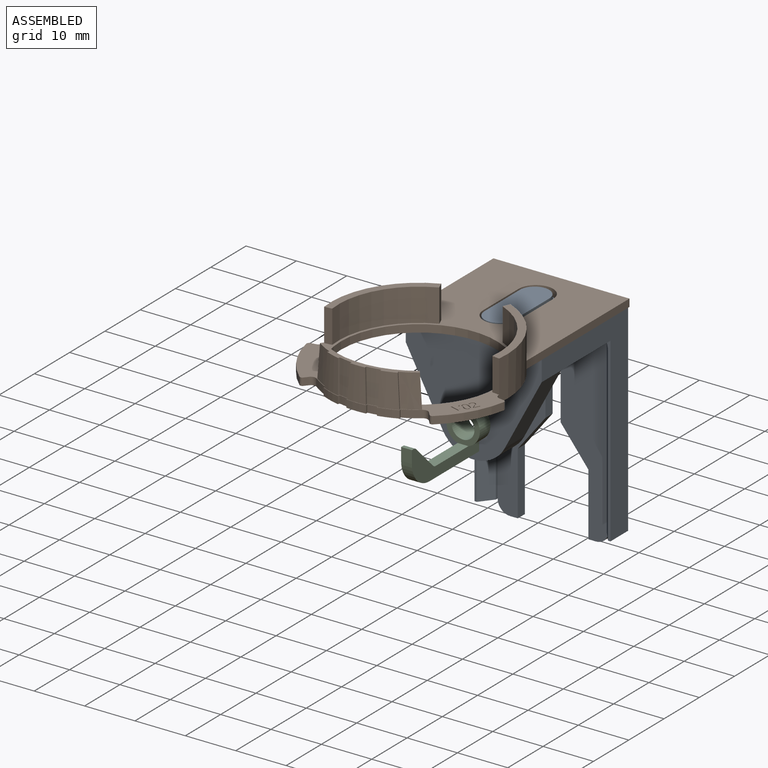
[diagram: assembled view]
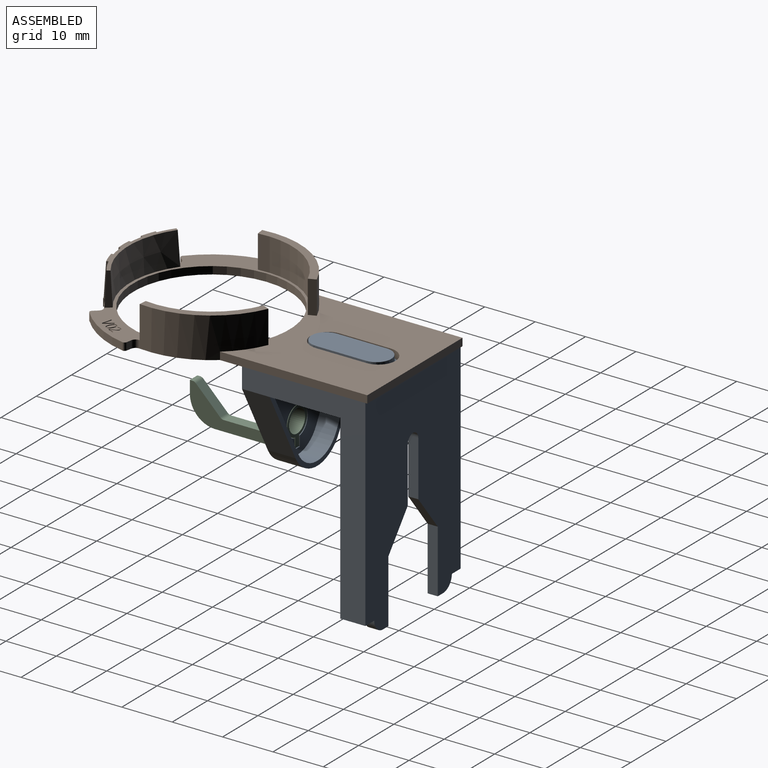
[diagram: assembled view, second angle]
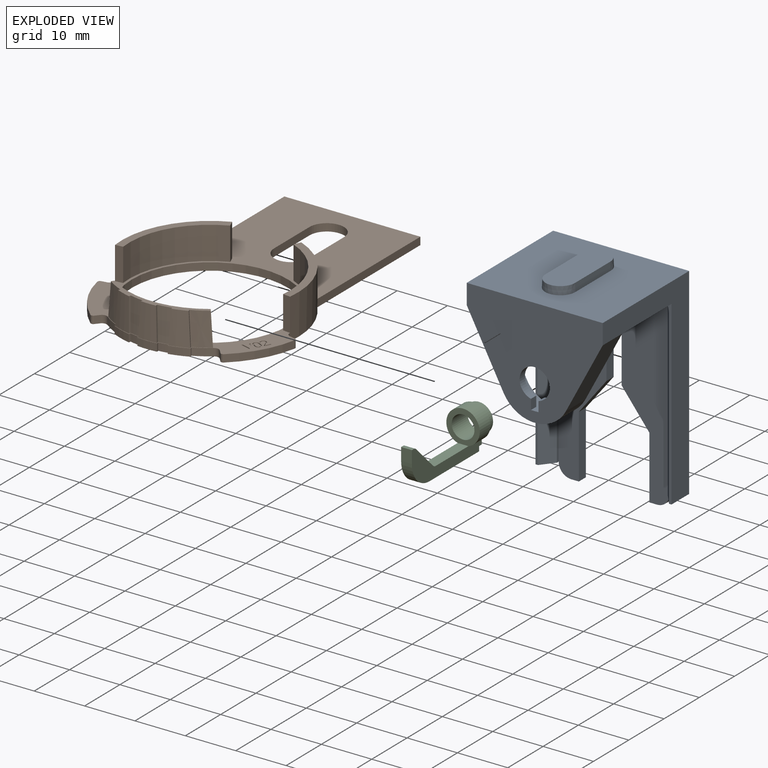
[diagram: exploded view]
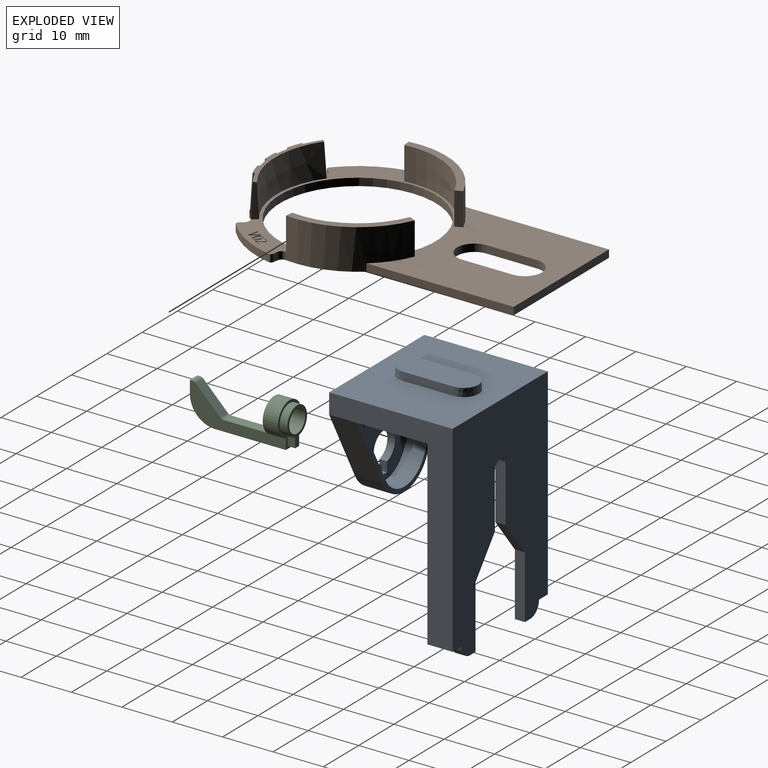
[diagram: exploded view, second angle]
ASSEMBLY  parts=3 mates=3
PART A: 112 faces, bbox 27x44.1x24.5 mm
  f0: plane 14x0.97mm, normal (0,1,0), area 13.6mm2, adj f4,f31,f35,f111
  f1: plane 14x0.97mm, normal (0,1,0), area 13.6mm2, adj f3,f19,f33,f111
  f2: plane 25.06x19.1mm, normal (0,0,-1), area 289.4mm2, adj f33,f34,f35,f36,f37,f38,f42,f106
  f3: plane 40x24.5mm, normal (1,0,0), area 274.1mm2, adj f1,f5,f6,f19,f32,f40,f43,f49
  f4: plane 36x0.97mm, normal (0,0,1), area 18.3mm2, adj f0,f20,f29,f30,f31
  f5: plane 5x2.5mm, normal (0,1,0), area 10mm2, adj f3,f6,f18,f19,f25,f26
  f6: plane 42.5x27mm, normal (0,0,-1), area 861.3mm2, adj f3,f5,f8,f9,f10,f11,f12,f13
  f7: plane 39x22mm, normal (0,0,1), area 581.6mm2, adj f8,f9,f10,f11,f12,f13,f14,f15
  f8: cylinder r=2.5mm len=2.5mm, axis (0,0,-1), area 7.9mm2, adj f6,f7,f9,f20
  f9: plane 2x1.5mm, normal (0,1,0), area 3mm2, adj f6,f7,f8,f10
  f10: plane 12.5x2mm, normal (1,0,0), area 25mm2, adj f6,f7,f9,f11
  f11: plane 7x5.5mm, normal (0.79,0.62,0), area 17.8mm2, adj f6,f7,f10,f12
  f12: plane 11x2mm, normal (1,0,0), area 22mm2, adj f6,f7,f11,f13
  f13: cylinder r=1.5mm len=3mm, axis (0,0,-1), area 9.4mm2, adj f6,f7,f12,f14
  f14: plane 11x2mm, normal (-1,0,0), area 22mm2, adj f6,f7,f13,f15
  f15: plane 7x5.5mm, normal (-0.79,0.62,0), area 17.8mm2, adj f6,f7,f14,f16
  f16: plane 12.5x2mm, normal (-1,0,0), area 25mm2, adj f6,f7,f15,f17
  f17: plane 2x1.5mm, normal (0,1,0), area 3mm2, adj f6,f7,f16,f18
  f18: cylinder r=2.5mm len=2.5mm, axis (0,0,-1), area 7.9mm2, adj f5,f6,f7,f17
  f19: plane 36x0.97mm, normal (0,0,1), area 18.3mm2, adj f1,f3,f5,f26,f27
  f20: plane 5x2.5mm, normal (0,1,0), area 10mm2, adj f4,f6,f8,f21,f30,f31
  f21: plane 34x0.5mm, normal (1,0,0), area 17mm2, adj f7,f20,f22,f30
  f22: cylinder r=2.5mm len=2.5mm, axis (0,0,1), area 2mm2, adj f7,f21,f23,f29
  f23: plane 17x0.5mm, normal (0,1,0), area 8.5mm2, adj f7,f22,f24,f28
  f24: cylinder r=2.5mm len=2.5mm, axis (0,0,1), area 2mm2, adj f7,f23,f25,f27
  f25: plane 34x0.5mm, normal (-1,0,0), area 17mm2, adj f5,f7,f24,f26
  f26: plane 34x2.5mm, normal (-0.78,0,0.62), area 108.9mm2, adj f5,f19,f25,f27
  f27: cone r=2.5mm half-angle=38.7deg, axis (0,0,1), area 17.6mm2, adj f19,f24,f26,f28,f33
  f28: plane 17x2.5mm, normal (0,0.78,0.62), area 54.4mm2, adj f23,f27,f29,f34
  f29: cone r=2.5mm half-angle=38.7deg, axis (0,0,1), area 17.6mm2, adj f4,f22,f28,f30,f35
  f30: plane 34x2.5mm, normal (0.78,0,0.62), area 108.9mm2, adj f4,f20,f21,f29
  f31: plane 40x24.5mm, normal (-1,0,0), area 278mm2, adj f0,f4,f6,f20,f32,f39,f43
  f32: plane 27x24.5mm, normal (0,-1,0), area 573.2mm2, adj f3,f6,f31,f43,f44,f45,f46,f47
  f33: cylinder r=4.5mm len=18mm, axis (0,0,-1), area 89.9mm2, adj f1,f2,f27,f34,f106
  f34: plane 18x17mm, normal (0,1,0), area 306mm2, adj f2,f28,f33,f35
  f35: cylinder r=4.5mm len=18mm, axis (0,0,-1), area 89.9mm2, adj f0,f2,f29,f34,f110
  f36: plane 2x1.5mm, normal (-1,0,0), area 3mm2, adj f2,f37,f42,f43
  f37: cylinder r=3mm len=6mm, axis (0,0,-1), area 26mm2, adj f2,f36,f38,f43
  f38: plane 2x1.5mm, normal (1,0,0), area 3mm2, adj f2,f37,f42,f43
  f39: plane 13.78x7.32mm, normal (-0.88,0.47,0), area 85.8mm2, adj f31,f41,f43,f111
  f40: plane 13.78x7.32mm, normal (0.88,0.47,0), area 85.8mm2, adj f3,f41,f43,f111
  f41: cylinder r=7mm len=12.37mm, axis (0,0,-1), area 83.4mm2, adj f39,f40,f43,f111
  f42: plane 1.5x1.5mm, normal (0,-1,0), area 2.2mm2, adj f2,f36,f38,f43
  f43: plane 27x21.5mm, normal (0,0,1), area 380.9mm2, adj f3,f31,f32,f36,f37,f38,f39,f40
  f44: cone r=3mm half-angle=3deg, axis (0,1,0), area 14.9mm2, adj f32,f45,f47,f48
  f45: plane 10x1.6mm, normal (1,-0.05,0), area 16mm2, adj f32,f44,f46,f48
  f46: cone r=3mm half-angle=3deg, axis (0,1,0), area 14.9mm2, adj f32,f45,f47,f48
  f47: plane 10x1.6mm, normal (-1,-0.05,0), area 16mm2, adj f32,f44,f46,f48
  f48: plane 15.83x5.83mm, normal (0,-1,0), area 85mm2, adj f44,f45,f46,f47
  f49: extruded ~0.33x0.2mm, area 0.1mm2, adj f3,f50,f70,f77
  f50: extruded ~0.28x0.2mm, area 0.1mm2, adj f3,f49,f71,f77
  f51: extruded ~0.26x0.2mm, area 0.1mm2, adj f3,f52,f71,f77
  f52: extruded ~0.24x0.2mm, area 0mm2, adj f3,f51,f53,f77
  f53: extruded ~0.27x0.2mm, area 0.1mm2, adj f3,f52,f54,f77
  f54: extruded ~0.22x0.2mm, area 0.1mm2, adj f3,f53,f55,f77
  f55: extruded ~0.28x0.2mm, area 0.1mm2, adj f3,f54,f56,f77
  f56: extruded ~0.36x0.2mm, area 0.1mm2, adj f3,f55,f72,f77
  f57: extruded ~0.56x0.35mm, area 0.1mm2, adj f3,f58,f74,f77
  f58: extruded ~0.5x0.39mm, area 0.1mm2, adj f3,f57,f59,f77
  f59: extruded ~0.27x0.2mm, area 0.1mm2, adj f3,f58,f60,f77
  f60: extruded ~0.27x0.2mm, area 0.1mm2, adj f3,f59,f75,f77
  f61: extruded ~0.25x0.2mm, area 0.1mm2, adj f3,f62,f75,f77
  f62: extruded ~0.28x0.2mm, area 0.1mm2, adj f3,f61,f63,f77
  f63: extruded ~0.55x0.2mm, area 0.1mm2, adj f3,f62,f64,f77
  f64: extruded ~0.43x0.2mm, area 0.1mm2, adj f3,f63,f65,f77
  f65: extruded ~0.31x0.2mm, area 0.1mm2, adj f3,f64,f66,f77
  f66: extruded ~0.35x0.2mm, area 0.1mm2, adj f3,f65,f76,f77
  f67: extruded ~0.3x0.2mm, area 0.1mm2, adj f3,f68,f76,f77
  f68: extruded ~0.3x0.2mm, area 0.1mm2, adj f3,f67,f69,f77
  f69: extruded ~0.36x0.2mm, area 0.1mm2, adj f3,f68,f70,f77
  f70: extruded ~0.44x0.2mm, area 0.1mm2, adj f3,f49,f69,f77
  f71: plane 0.2x0.15mm, normal (0,0.6,-0.8), area 0mm2, adj f3,f50,f51,f77
  f72: plane 0.2x0.19mm, normal (0,-1,0), area 0mm2, adj f3,f56,f73,f77
  f73: plane 0.2x0.19mm, normal (0,0,-1), area 0mm2, adj f3,f72,f74,f77
  f74: plane 0.2x0.19mm, normal (0,1,0), area 0mm2, adj f3,f57,f73,f77
  f75: plane 0.21x0.2mm, normal (0,0,-1), area 0mm2, adj f3,f60,f61,f77
  f76: plane 0.2x0.01mm, normal (0,0,1), area 0mm2, adj f3,f66,f67,f77
  f77: plane 2x1.27mm, normal (1,0,0), area 0.9mm2, adj f49,f50,f51,f52,f53,f54,f55,f56
  f78: extruded ~0.48x0.25mm, area 0.1mm2, adj f3,f79,f93,f94
  f79: extruded ~0.75x0.2mm, area 0.2mm2, adj f3,f78,f80,f94
  f80: extruded ~0.75x0.2mm, area 0.2mm2, adj f3,f79,f81,f94
  f81: extruded ~0.48x0.25mm, area 0.1mm2, adj f3,f80,f82,f94
  f82: extruded ~0.49x0.25mm, area 0.1mm2, adj f3,f81,f83,f94
  f83: extruded ~0.75x0.2mm, area 0.2mm2, adj f3,f82,f84,f94
  f84: extruded ~0.74x0.2mm, area 0.2mm2, adj f3,f83,f93,f94
  f85: extruded ~0.32x0.2mm, area 0.1mm2, adj f86,f92,f94,f95
  f86: extruded ~0.61x0.2mm, area 0.1mm2, adj f85,f87,f94,f95
  f87: extruded ~0.61x0.2mm, area 0.1mm2, adj f86,f88,f94,f95
  f88: extruded ~0.32x0.2mm, area 0.1mm2, adj f87,f89,f94,f95
  f89: extruded ~0.32x0.2mm, area 0.1mm2, adj f88,f90,f94,f95
  f90: extruded ~0.62x0.2mm, area 0.1mm2, adj f89,f91,f94,f95
  f91: extruded ~0.62x0.2mm, area 0.1mm2, adj f90,f92,f94,f95
  f92: extruded ~0.32x0.2mm, area 0.1mm2, adj f85,f91,f94,f95
  f93: extruded ~0.48x0.26mm, area 0.1mm2, adj f3,f78,f84,f94
  f94: plane 2x1.29mm, normal (1,0,0), area 1mm2, adj f78,f79,f80,f81,f82,f83,f84,f85
  f95: plane 1.62x0.84mm, normal (1,0,0), area 1.1mm2, adj f85,f86,f87,f88,f89,f90,f91,f92
  f96: extruded ~0.42x0.2mm, area 0.1mm2, adj f3,f97,f98,f105
  f97: extruded ~0.43x0.2mm, area 0.1mm2, adj f3,f96,f104,f105
  f98: plane 1.26x0.45mm, normal (0,-0.33,0.94), area 0.3mm2, adj f3,f96,f99,f105
  f99: plane 0.24x0.2mm, normal (0,-1,0), area 0mm2, adj f3,f98,f100,f105
  f100: plane 1.94x0.7mm, normal (0,0.34,-0.94), area 0.4mm2, adj f3,f99,f101,f105
  f101: plane 0.22x0.2mm, normal (0,1,0), area 0mm2, adj f3,f100,f102,f105
  f102: plane 1.94x0.7mm, normal (0,0.34,0.94), area 0.4mm2, adj f3,f101,f103,f105
  f103: plane 0.24x0.2mm, normal (0,-1,0), area 0mm2, adj f3,f102,f104,f105
  f104: plane 1.25x0.44mm, normal (0,-0.33,-0.94), area 0.3mm2, adj f3,f97,f103,f105
  f105: plane 1.94x1.62mm, normal (1,0,0), area 0.9mm2, adj f96,f97,f98,f99,f100,f101,f102,f103
  f106: plane 4x0.05mm, normal (0,-1,0), area 0.2mm2, adj f2,f33,f107,f111
  f107: plane 13.36x7.09mm, normal (-0.88,-0.47,0), area 60.5mm2, adj f2,f106,f108,f111
  f108: cylinder r=6.1mm len=10.78mm, axis (0,0,1), area 52.8mm2, adj f2,f107,f109,f111
  f109: plane 13.36x7.09mm, normal (0.88,-0.47,0), area 60.5mm2, adj f2,f108,f110,f111
  f110: plane 4x0.05mm, normal (0,-1,0), area 0.2mm2, adj f2,f35,f109,f111
  f111: plane 27x17.5mm, normal (0,0,-1), area 40.4mm2, adj f0,f1,f39,f40,f41,f106,f107,f108
PART B: 113 faces, bbox 39.2x58.3x8 mm
  f0: plane 58.27x39.22mm, normal (0,0,1), area 741.2mm2, adj f2,f3,f4,f5,f7,f8,f9,f10
  f1: plane 58.27x39.22mm, normal (0,0,-1), area 843mm2, adj f3,f7,f29,f30,f31,f32,f33,f34
  f2: plane 6.5x1.38mm, normal (0.92,0.39,0), area 9.7mm2, adj f0,f3,f5,f6
  f3: cylinder r=17.5mm len=18.2mm, axis (0,0,-1), area 167.8mm2, adj f0,f1,f2,f4,f6,f30,f31
  f4: plane 6.5x1.49mm, normal (0.12,-0.99,0), area 9.7mm2, adj f0,f3,f5,f6
  f5: cylinder r=16mm len=16.64mm, axis (0,0,-1), area 134mm2, adj f0,f2,f4,f6
  f6: plane 18.2x11.22mm, normal (0,0,1), area 32.4mm2, adj f2,f3,f4,f5
  f7: cylinder r=17.5mm len=18.2mm, axis (0,0,-1), area 167.8mm2, adj f0,f1,f8,f10,f11,f57,f58
  f8: plane 6.5x1.38mm, normal (-0.92,0.39,0), area 9.7mm2, adj f0,f7,f9,f11
  f9: cylinder r=16mm len=16.64mm, axis (0,0,-1), area 134mm2, adj f0,f8,f10,f11
  f10: plane 6.5x1.49mm, normal (-0.12,-0.99,0), area 9.7mm2, adj f0,f7,f9,f11
  f11: plane 18.2x11.22mm, normal (0,0,1), area 32.4mm2, adj f7,f8,f9,f10
  f12: plane 6.5x1.08mm, normal (-0.8,0.6,0.05), area 6.5mm2, adj f0,f13,f27,f28
  f13: cone r=17.5mm half-angle=3deg, axis (0,0,-1), area 23.3mm2, adj f0,f12,f14,f28
  f14: plane 6.5x0.63mm, normal (-0.91,0.42,0.05), area 2.6mm2, adj f0,f13,f15,f28
  f15: cone r=17.9mm half-angle=3deg, axis (0,0,-1), area 21.8mm2, adj f0,f14,f16,f28
  f16: plane 6.5x0.81mm, normal (0.97,-0.22,0.05), area 2.6mm2, adj f0,f15,f17,f28
  f17: cone r=17.5mm half-angle=3deg, axis (0,0,-1), area 15.5mm2, adj f0,f16,f18,f28
  f18: plane 6.5x0.71mm, normal (-0.99,0.11,0.05), area 2.6mm2, adj f0,f17,f19,f28
  f19: cone r=17.9mm half-angle=3deg, axis (0,0,-1), area 21.8mm2, adj f0,f18,f20,f28
  f20: plane 6.5x0.71mm, normal (0.99,0.11,0.05), area 2.6mm2, adj f0,f19,f21,f28
  f21: cone r=17.5mm half-angle=3deg, axis (0,0,-1), area 15.5mm2, adj f0,f20,f22,f28
  f22: plane 6.5x0.81mm, normal (-0.97,-0.22,0.05), area 2.6mm2, adj f0,f21,f23,f28
  f23: cone r=17.9mm half-angle=3deg, axis (0,0,-1), area 21.8mm2, adj f0,f22,f24,f28
  f24: plane 6.5x0.63mm, normal (0.91,0.42,0.05), area 2.6mm2, adj f0,f23,f25,f28
  f25: cone r=17.5mm half-angle=3deg, axis (0,0,-1), area 23.3mm2, adj f0,f24,f26,f28
  f26: plane 6.5x1.08mm, normal (0.8,0.6,0.05), area 6.5mm2, adj f0,f25,f27,f28
  f27: cone r=16mm half-angle=3deg, axis (0,0,1), area 133mm2, adj f0,f12,f26,f28
  f28: plane 19.84x4.1mm, normal (0,0,1), area 17.2mm2, adj f12,f13,f14,f15,f16,f17,f18,f19
  f29: cylinder r=15.5mm len=31mm, axis (0,0,-1), area 146.1mm2, adj f0,f1
  f30: plane 29.24x1.5mm, normal (-1,0,0), area 43.9mm2, adj f0,f1,f3,f59
  f31: cylinder r=1mm len=1.5mm, axis (0,0,-1), area 2.3mm2, adj f0,f1,f3,f32
  f32: plane 1.5x1.01mm, normal (-0.17,0.98,0), area 1.5mm2, adj f0,f1,f31,f33
  f33: cylinder r=0.5mm len=1.5mm, axis (0,0,-1), area 1.2mm2, adj f0,f1,f32,f34
  f34: cylinder r=20mm len=11.01mm, axis (0,0,-1), area 19.4mm2, adj f0,f1,f33,f35
  f35: cylinder r=0.5mm len=1.5mm, axis (0,0,-1), area 1.2mm2, adj f0,f1,f34,f36
  f36: plane 1.5x0.78mm, normal (0.77,-0.64,0), area 1.5mm2, adj f0,f1,f35,f37
  f37: cylinder r=1mm len=1.5mm, axis (0,0,-1), area 2.3mm2, adj f0,f1,f36,f38
  f38: cylinder r=17.5mm len=3.11mm, axis (0,0,-1), area 5.5mm2, adj f0,f1,f37,f39
  f39: plane 1.5x0.36mm, normal (-0.91,0.42,0), area 0.6mm2, adj f0,f1,f38,f40
  f40: cylinder r=17.9mm len=3.69mm, axis (0,0,-1), area 5.9mm2, adj f0,f1,f39,f41
  f41: plane 1.5x0.39mm, normal (0.98,-0.22,0), area 0.6mm2, adj f0,f1,f40,f42
  f42: cylinder r=17.5mm len=1.88mm, axis (0,0,-1), area 2.9mm2, adj f0,f1,f41,f43
  f43: plane 1.5x0.4mm, normal (-0.99,0.11,0), area 0.6mm2, adj f0,f1,f42,f44
  f44: cylinder r=17.9mm len=3.9mm, axis (0,0,-1), area 5.9mm2, adj f0,f1,f43,f45
  f45: plane 1.5x0.4mm, normal (0.99,0.11,0), area 0.6mm2, adj f0,f1,f44,f46
  f46: cylinder r=17.5mm len=1.88mm, axis (0,0,-1), area 2.9mm2, adj f0,f1,f45,f47
  f47: plane 1.5x0.39mm, normal (-0.98,-0.22,0), area 0.6mm2, adj f0,f1,f46,f48
  f48: cylinder r=17.9mm len=3.69mm, axis (0,0,-1), area 5.9mm2, adj f0,f1,f47,f49
  f49: plane 1.5x0.36mm, normal (0.91,0.42,0), area 0.6mm2, adj f0,f1,f48,f50
  f50: cylinder r=17.5mm len=3.11mm, axis (0,0,-1), area 5.5mm2, adj f0,f1,f49,f51
  f51: cylinder r=1mm len=1.5mm, axis (0,0,-1), area 2.3mm2, adj f0,f1,f50,f52
  f52: plane 1.5x0.78mm, normal (-0.77,-0.64,0), area 1.5mm2, adj f0,f1,f51,f53
  f53: cylinder r=0.5mm len=1.5mm, axis (0,0,-1), area 1.2mm2, adj f0,f1,f52,f54
  f54: cylinder r=20mm len=11.01mm, axis (0,0,-1), area 19.4mm2, adj f0,f1,f53,f55
  f55: cylinder r=0.5mm len=1.5mm, axis (0,0,-1), area 1.2mm2, adj f0,f1,f54,f56
  f56: plane 1.5x1.01mm, normal (0.17,0.98,0), area 1.5mm2, adj f0,f1,f55,f57
  f57: cylinder r=1mm len=1.5mm, axis (0,0,-1), area 2.3mm2, adj f0,f1,f7,f56
  f58: plane 29.24x1.5mm, normal (1,0,0), area 43.9mm2, adj f0,f1,f7,f59
  f59: plane 27x1.5mm, normal (0,1,0), area 40.5mm2, adj f0,f1,f30,f58
  f60: plane 10x1.5mm, normal (1,0,0), area 15mm2, adj f0,f1,f61,f63
  f61: cylinder r=3.42mm len=6.83mm, axis (0,0,1), area 16.1mm2, adj f0,f1,f60,f62
  f62: plane 10x1.5mm, normal (-1,0,0), area 15mm2, adj f0,f1,f61,f63
  f63: cylinder r=3.42mm len=6.83mm, axis (0,0,1), area 16.1mm2, adj f0,f1,f60,f62
  f64: extruded ~0.42x0.2mm, area 0.1mm2, adj f0,f65,f66,f73
  f65: extruded ~0.35x0.28mm, area 0.1mm2, adj f0,f64,f72,f73
  f66: plane 1.29x0.34mm, normal (-0.26,-0.97,0), area 0.3mm2, adj f0,f64,f67,f73
  f67: plane 0.2x0.2mm, normal (0.82,-0.57,0), area 0mm2, adj f0,f66,f68,f73
  f68: plane 2x0.53mm, normal (0.26,0.97,0), area 0.4mm2, adj f0,f67,f69,f73
  f69: plane 0.2x0.18mm, normal (-0.82,0.57,0), area 0mm2, adj f0,f68,f70,f73
  f70: plane 1.68x1.2mm, normal (-0.81,-0.58,0), area 0.4mm2, adj f0,f69,f71,f73
  f71: plane 0.2x0.2mm, normal (0.82,-0.57,0), area 0mm2, adj f0,f70,f72,f73
  f72: plane 1.07x0.78mm, normal (0.81,0.59,0), area 0.3mm2, adj f0,f65,f71,f73
  f73: plane 2.12x1.86mm, normal (0,0,1), area 0.9mm2, adj f64,f65,f66,f67,f68,f69,f70,f71
  f74: extruded ~0.55x0.25mm, area 0.1mm2, adj f0,f75,f87,f94
  f75: extruded ~0.29x0.25mm, area 0.1mm2, adj f0,f74,f76,f94
  f76: extruded ~0.41x0.2mm, area 0.1mm2, adj f0,f75,f77,f94
  f77: extruded ~0.33x0.31mm, area 0.1mm2, adj f0,f76,f78,f94
  f78: extruded ~0.62x0.2mm, area 0.1mm2, adj f0,f77,f88,f94
  f79: extruded ~0.28x0.2mm, area 0.1mm2, adj f0,f80,f88,f94
  f80: extruded ~0.22x0.2mm, area 0mm2, adj f0,f79,f81,f94
  f81: extruded ~0.2x0.2mm, area 0.1mm2, adj f0,f80,f82,f94
  f82: extruded ~0.26x0.2mm, area 0.1mm2, adj f0,f81,f83,f94
  f83: extruded ~0.2x0.17mm, area 0mm2, adj f0,f82,f84,f94
  f84: extruded ~0.2x0.18mm, area 0mm2, adj f0,f83,f85,f94
  f85: extruded ~0.42x0.2mm, area 0.1mm2, adj f0,f84,f89,f94
  f86: plane 0.2x0.01mm, normal (-0.43,-0.9,0), area 0mm2, adj f0,f87,f93,f94
  f87: plane 0.56x0.2mm, normal (-0.94,-0.33,0), area 0.1mm2, adj f0,f74,f86,f94
  f88: plane 0.2x0.19mm, normal (-0.22,0.98,0), area 0mm2, adj f0,f78,f79,f94
  f89: plane 0.68x0.25mm, normal (0.94,0.34,0), area 0.1mm2, adj f0,f85,f90,f94
  f90: plane 0.2x0.17mm, normal (0.43,0.9,0), area 0mm2, adj f0,f89,f91,f94
  f91: plane 1.16x0.54mm, normal (-0.9,0.43,0), area 0.3mm2, adj f0,f90,f92,f94
  f92: plane 0.2x0.19mm, normal (-0.43,-0.9,0), area 0mm2, adj f0,f91,f93,f94
  f93: plane 0.9x0.43mm, normal (0.9,-0.43,0), area 0.2mm2, adj f0,f86,f92,f94
  f94: plane 2.17x1.77mm, normal (0,0,1), area 0.8mm2, adj f74,f75,f76,f77,f78,f79,f80,f81
  f95: extruded ~0.54x0.2mm, area 0.1mm2, adj f0,f96,f110,f111
  f96: extruded ~0.58x0.51mm, area 0.2mm2, adj f0,f95,f97,f111
  f97: extruded ~0.73x0.23mm, area 0.2mm2, adj f0,f96,f98,f111
  f98: extruded ~0.46x0.29mm, area 0.1mm2, adj f0,f97,f99,f111
  f99: extruded ~0.55x0.2mm, area 0.1mm2, adj f0,f98,f100,f111
  f100: extruded ~0.57x0.51mm, area 0.2mm2, adj f0,f99,f101,f111
  f101: extruded ~0.73x0.23mm, area 0.2mm2, adj f0,f100,f110,f111
  f102: extruded ~0.33x0.2mm, area 0.1mm2, adj f103,f109,f111,f112
  f103: extruded ~0.58x0.22mm, area 0.1mm2, adj f102,f104,f111,f112
  f104: extruded ~0.49x0.39mm, area 0.1mm2, adj f103,f105,f111,f112
  f105: extruded ~0.37x0.2mm, area 0.1mm2, adj f104,f106,f111,f112
  f106: extruded ~0.33x0.2mm, area 0.1mm2, adj f105,f107,f111,f112
  f107: extruded ~0.59x0.22mm, area 0.1mm2, adj f106,f108,f111,f112
  f108: extruded ~0.49x0.39mm, area 0.1mm2, adj f107,f109,f111,f112
  f109: extruded ~0.37x0.2mm, area 0.1mm2, adj f102,f108,f111,f112
  f110: extruded ~0.46x0.29mm, area 0.1mm2, adj f0,f95,f101,f111
  f111: plane 1.97x1.6mm, normal (0,0,1), area 1mm2, adj f95,f96,f97,f98,f99,f100,f101,f102
  f112: plane 1.55x1.18mm, normal (0,0,1), area 1.1mm2, adj f102,f103,f104,f105,f106,f107,f108,f109
PART C: 76 faces, bbox 6.6x8.5x20.5 mm
  f0: plane 2.48x2.14mm, normal (0,0,1), area 5.3mm2, adj f1,f6,f7,f73
  f1: plane 2.14x0.5mm, normal (0,-1,0), area 1.1mm2, adj f0,f6,f7,f75
  f2: plane 4.82x4.82mm, normal (0,-0.71,-0.71), area 14.6mm2, adj f6,f7,f74,f75
  f3: cylinder r=3.32mm len=6.64mm, axis (0,0,-1), area 56.4mm2, adj f6,f7,f13,f71
  f4: plane 14.05x2.14mm, normal (0,1,0), area 27.9mm2, adj f6,f7,f13,f14,f15,f16,f17,f18
  f5: cylinder r=2.26mm len=4.52mm, axis (0,0,1), area 64.2mm2, adj f8,f71
  f6: plane 19.05x7.48mm, normal (1,0,0), area 53.8mm2, adj f0,f1,f2,f3,f4,f13,f72,f73
  f7: plane 19.05x7.48mm, normal (-1,0,0), area 53.8mm2, adj f0,f1,f2,f3,f4,f13,f72,f73
  f8: plane 7.5x5.6mm, normal (0,0,-1), area 10.7mm2, adj f5,f9,f10,f11,f12
  f9: plane 1.96x1.5mm, normal (-1,0,0), area 2.9mm2, adj f8,f10,f12,f13
  f10: cylinder r=2.8mm len=5.6mm, axis (0,0,1), area 24.7mm2, adj f8,f9,f11,f13
  f11: plane 1.96x1.5mm, normal (1,0,0), area 2.9mm2, adj f8,f10,f12,f13
  f12: plane 1.5x1.1mm, normal (0,1,0), area 1.6mm2, adj f8,f9,f11,f13
  f13: plane 8.54x6.64mm, normal (0,0,-1), area 12.1mm2, adj f3,f4,f6,f7,f9,f10,f11,f12
  f14: plane 0.2x0.11mm, normal (-0.6,0,-0.8), area 0mm2, adj f4,f21,f22,f42
  f15: plane 0.2x0.15mm, normal (1,0,0), area 0mm2, adj f4,f16,f27,f42
  f16: plane 0.2x0.14mm, normal (0,0,-1), area 0mm2, adj f4,f15,f17,f42
  f17: plane 0.2x0.14mm, normal (-1,0,0), area 0mm2, adj f4,f16,f28,f42
  f18: plane 0.2x0.16mm, normal (0,0,-1), area 0mm2, adj f4,f31,f32,f42
  f19: plane 0.2x0.01mm, normal (0,0,1), area 0mm2, adj f4,f37,f38,f42
  f20: extruded ~0.25x0.2mm, area 0.1mm2, adj f4,f21,f41,f42
  f21: extruded ~0.21x0.2mm, area 0mm2, adj f4,f14,f20,f42
  f22: extruded ~0.2x0.19mm, area 0mm2, adj f4,f14,f23,f42
  f23: extruded ~0.2x0.18mm, area 0mm2, adj f4,f22,f24,f42
  f24: extruded ~0.2x0.2mm, area 0mm2, adj f4,f23,f25,f42
  f25: extruded ~0.2x0.17mm, area 0mm2, adj f4,f24,f26,f42
  f26: extruded ~0.21x0.2mm, area 0mm2, adj f4,f25,f27,f42
  f27: extruded ~0.27x0.2mm, area 0.1mm2, adj f4,f15,f26,f42
  f28: extruded ~0.42x0.27mm, area 0.1mm2, adj f4,f17,f29,f42
  f29: extruded ~0.38x0.3mm, area 0.1mm2, adj f4,f28,f30,f42
  f30: extruded ~0.2x0.2mm, area 0mm2, adj f4,f29,f31,f42
  f31: extruded ~0.2x0.2mm, area 0mm2, adj f4,f18,f30,f42
  f32: extruded ~0.2x0.19mm, area 0mm2, adj f4,f18,f33,f42
  f33: extruded ~0.21x0.2mm, area 0mm2, adj f4,f32,f34,f42
  f34: extruded ~0.41x0.2mm, area 0.1mm2, adj f4,f33,f35,f42
  f35: extruded ~0.32x0.2mm, area 0.1mm2, adj f4,f34,f36,f42
  f36: extruded ~0.24x0.2mm, area 0.1mm2, adj f4,f35,f37,f42
  f37: extruded ~0.26x0.2mm, area 0.1mm2, adj f4,f19,f36,f42
  f38: extruded ~0.22x0.2mm, area 0.1mm2, adj f4,f19,f39,f42
  f39: extruded ~0.23x0.2mm, area 0mm2, adj f4,f38,f40,f42
  f40: extruded ~0.27x0.2mm, area 0.1mm2, adj f4,f39,f41,f42
  f41: extruded ~0.33x0.2mm, area 0.1mm2, adj f4,f20,f40,f42
  f42: plane 1.5x0.95mm, normal (0,1,0), area 0.5mm2, adj f14,f15,f16,f17,f18,f19,f20,f21
  f43: extruded ~0.36x0.2mm, area 0.1mm2, adj f4,f44,f58,f59
  f44: extruded ~0.57x0.2mm, area 0.1mm2, adj f4,f43,f45,f59
  f45: extruded ~0.56x0.2mm, area 0.1mm2, adj f4,f44,f46,f59
  f46: extruded ~0.36x0.2mm, area 0.1mm2, adj f4,f45,f47,f59
  f47: extruded ~0.36x0.2mm, area 0.1mm2, adj f4,f46,f48,f59
  f48: extruded ~0.56x0.2mm, area 0.1mm2, adj f4,f47,f49,f59
  f49: extruded ~0.56x0.2mm, area 0.1mm2, adj f4,f48,f58,f59
  f50: extruded ~0.24x0.2mm, area 0.1mm2, adj f51,f57,f59,f60
  f51: extruded ~0.46x0.2mm, area 0.1mm2, adj f50,f52,f59,f60
  f52: extruded ~0.46x0.2mm, area 0.1mm2, adj f51,f53,f59,f60
  f53: extruded ~0.24x0.2mm, area 0.1mm2, adj f52,f54,f59,f60
  f54: extruded ~0.24x0.2mm, area 0.1mm2, adj f53,f55,f59,f60
  f55: extruded ~0.46x0.2mm, area 0.1mm2, adj f54,f56,f59,f60
  f56: extruded ~0.46x0.2mm, area 0.1mm2, adj f55,f57,f59,f60
  f57: extruded ~0.24x0.2mm, area 0.1mm2, adj f50,f56,f59,f60
  f58: extruded ~0.36x0.2mm, area 0.1mm2, adj f4,f43,f49,f59
  f59: plane 1.5x0.96mm, normal (0,1,0), area 0.6mm2, adj f43,f44,f45,f46,f47,f48,f49,f50
  f60: plane 1.21x0.63mm, normal (0,1,0), area 0.6mm2, adj f50,f51,f52,f53,f54,f55,f56,f57
  f61: plane 0.94x0.34mm, normal (0.33,0,0.94), area 0.2mm2, adj f4,f62,f68,f70
  f62: plane 0.2x0.18mm, normal (1,0,0), area 0mm2, adj f4,f61,f63,f70
  f63: plane 1.46x0.52mm, normal (-0.34,0,-0.94), area 0.3mm2, adj f4,f62,f64,f70
  f64: plane 0.2x0.17mm, normal (-1,0,0), area 0mm2, adj f4,f63,f65,f70
  f65: plane 1.46x0.53mm, normal (-0.34,0,0.94), area 0.3mm2, adj f4,f64,f66,f70
  f66: plane 0.2x0.18mm, normal (1,0,0), area 0mm2, adj f4,f65,f67,f70
  f67: plane 0.94x0.33mm, normal (0.33,0,-0.94), area 0.2mm2, adj f4,f66,f69,f70
  f68: extruded ~0.32x0.2mm, area 0.1mm2, adj f4,f61,f69,f70
  f69: extruded ~0.32x0.2mm, area 0.1mm2, adj f4,f67,f68,f70
  f70: plane 1.46x1.21mm, normal (0,1,0), area 0.5mm2, adj f61,f62,f63,f64,f65,f66,f67,f68
  f71: plane 6.64x6.46mm, normal (0,0,1), area 18.3mm2, adj f3,f5,f72
  f72: plane 9.3x2.14mm, normal (0,-1,0), area 19.9mm2, adj f6,f7,f71,f74
  f73: cylinder r=5mm len=5mm, axis (1,0,0), area 16.8mm2, adj f0,f4,f6,f7
  f74: cylinder r=1mm len=2.14mm, axis (1,0,0), area 1.7mm2, adj f2,f6,f7,f72
  f75: cylinder r=1mm len=2.14mm, axis (1,0,0), area 1.7mm2, adj f1,f2,f6,f7
PLACE A rot(axis=(0,0.71,-0.71),180deg) t=(-5.09,37.23,-25.09)mm
PLACE B t=(-5.09,-0.77,-2.09)mm fixed
PLACE C rot(axis=(0,0.71,-0.71),180deg) t=(-5.09,37.23,-25.09)mm
MATE cylindrical C.f10 <-> A.f37  axis (0,-1,0) through (-5.09,15.48,-16.59)mm
MATE planar A.f32 <-> B.f1  axis (0,0,1) through (-18.59,26.98,-2.09)mm
MATE planar A.f95 <-> B.f30  axis (-1,0,0) through (-18.59,27.07,-4.1)mm
